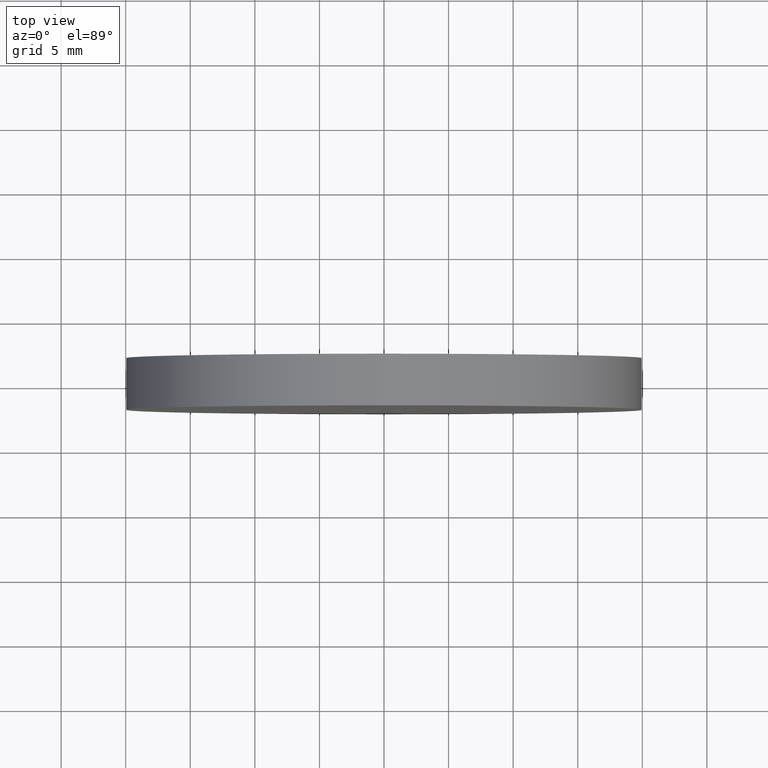
[diagram: clean part render]
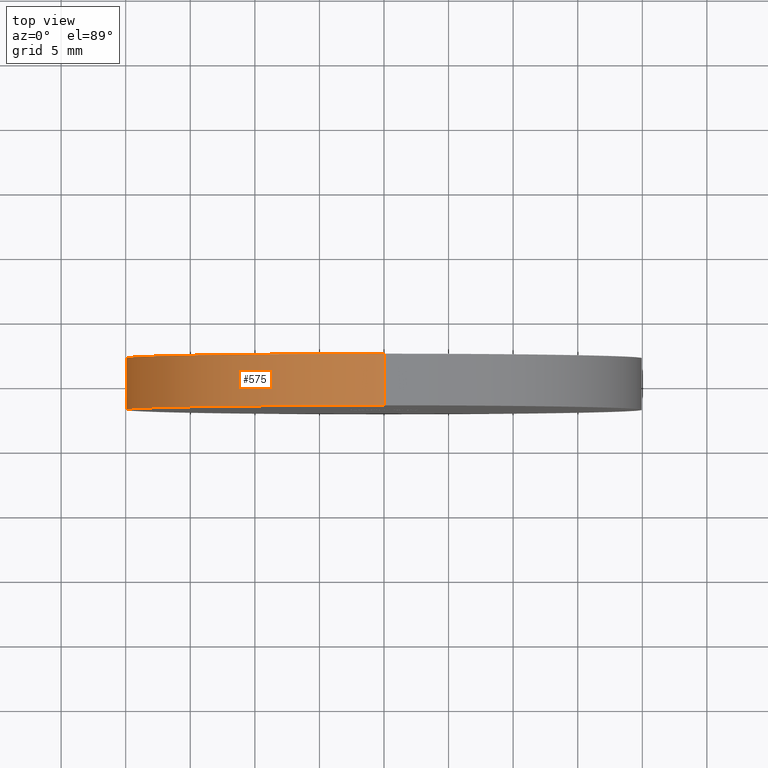
[diagram: same view with one face highlighted and labeled with its STEP entity id]
A machine part, top view. The second image highlights one B-rep face of the part: STEP entity #575.
In plain terms, the highlighted cylindrical surface (partial cylindrical patch) has radius 20 mm, axis along (-0, -1, -0).
Its self-contained STEP definition (entity closure, byte-faithful):
#81 = EDGE_CURVE ( 'NONE', #12709, #6497, #9178, .T. ) ;
#484 = EDGE_CURVE ( 'NONE', #12709, #12246, #5215, .T. ) ;
#575 = ADVANCED_FACE ( 'NONE', ( #10127 ), #1231, .T. ) ;
#674 = VERTEX_POINT ( 'NONE', #4386 ) ;
#710 = EDGE_CURVE ( 'NONE', #12246, #674, #9027, .T. ) ;
#1231 = CYLINDRICAL_SURFACE ( 'NONE', #3715, 20.00000000000000000 ) ;
#1402 = VECTOR ( 'NONE', #7855, 1000.000000000000000 ) ;
#1475 = ORIENTED_EDGE ( 'NONE', *, *, #9146, .F. ) ;
#1887 = VECTOR ( 'NONE', #8636, 1000.000000000000000 ) ;
#2517 = DIRECTION ( 'NONE',  ( 0.000000000000000000, 1.000000000000000000, 0.000000000000000000 ) ) ;
#3034 = AXIS2_PLACEMENT_3D ( 'NONE', #4842, #11937, #9013 ) ;
#3272 = CARTESIAN_POINT ( 'NONE',  ( 0.000000000000000000, 2.000000000000000000, 0.000000000000000000 ) ) ;
#3351 = CARTESIAN_POINT ( 'NONE',  ( 0.000000000000000000, 2.000000000000000000, 0.000000000000000000 ) ) ;
#3436 = DIRECTION ( 'NONE',  ( 0.000000000000000000, 0.000000000000000000, 1.000000000000000000 ) ) ;
#3715 = AXIS2_PLACEMENT_3D ( 'NONE', #3272, #5292, #8304 ) ;
#4386 = CARTESIAN_POINT ( 'NONE',  ( 2.449293598294706513E-15, -2.000000000000000000, 20.00000000000000000 ) ) ;
#4820 = CARTESIAN_POINT ( 'NONE',  ( 2.449293598294706513E-15, 2.000000000000000000, 20.00000000000000000 ) ) ;
#4842 = CARTESIAN_POINT ( 'NONE',  ( 0.000000000000000000, -2.000000000000000000, 0.000000000000000000 ) ) ;
#5215 = LINE ( 'NONE', #6737, #1402 ) ;
#5292 = DIRECTION ( 'NONE',  ( -0.000000000000000000, -1.000000000000000000, -0.000000000000000000 ) ) ;
#6497 = VERTEX_POINT ( 'NONE', #4820 ) ;
#6737 = CARTESIAN_POINT ( 'NONE',  ( 0.000000000000000000, 2.000000000000000000, -20.00000000000000000 ) ) ;
#6868 = AXIS2_PLACEMENT_3D ( 'NONE', #3351, #2517, #3436 ) ;
#7855 = DIRECTION ( 'NONE',  ( -0.000000000000000000, -1.000000000000000000, -0.000000000000000000 ) ) ;
#8304 = DIRECTION ( 'NONE',  ( 0.000000000000000000, 0.000000000000000000, -1.000000000000000000 ) ) ;
#8636 = DIRECTION ( 'NONE',  ( -0.000000000000000000, -1.000000000000000000, -0.000000000000000000 ) ) ;
#8776 = CARTESIAN_POINT ( 'NONE',  ( 0.000000000000000000, 2.000000000000000000, -20.00000000000000000 ) ) ;
#9013 = DIRECTION ( 'NONE',  ( 0.000000000000000000, 0.000000000000000000, 1.000000000000000000 ) ) ;
#9027 = CIRCLE ( 'NONE', #3034, 20.00000000000000000 ) ;
#9091 = CARTESIAN_POINT ( 'NONE',  ( 0.000000000000000000, -2.000000000000000000, -20.00000000000000000 ) ) ;
#9146 = EDGE_CURVE ( 'NONE', #6497, #674, #13156, .T. ) ;
#9178 = CIRCLE ( 'NONE', #6868, 20.00000000000000000 ) ;
#10127 = FACE_OUTER_BOUND ( 'NONE', #10146, .T. ) ;
#10146 = EDGE_LOOP ( 'NONE', ( #1475, #11934, #10940, #12538 ) ) ;
#10544 = CARTESIAN_POINT ( 'NONE',  ( 2.449293598294706513E-15, 2.000000000000000000, 20.00000000000000000 ) ) ;
#10940 = ORIENTED_EDGE ( 'NONE', *, *, #484, .T. ) ;
#11934 = ORIENTED_EDGE ( 'NONE', *, *, #81, .F. ) ;
#11937 = DIRECTION ( 'NONE',  ( 0.000000000000000000, 1.000000000000000000, 0.000000000000000000 ) ) ;
#12246 = VERTEX_POINT ( 'NONE', #9091 ) ;
#12538 = ORIENTED_EDGE ( 'NONE', *, *, #710, .T. ) ;
#12709 = VERTEX_POINT ( 'NONE', #8776 ) ;
#13156 = LINE ( 'NONE', #10544, #1887 ) ;